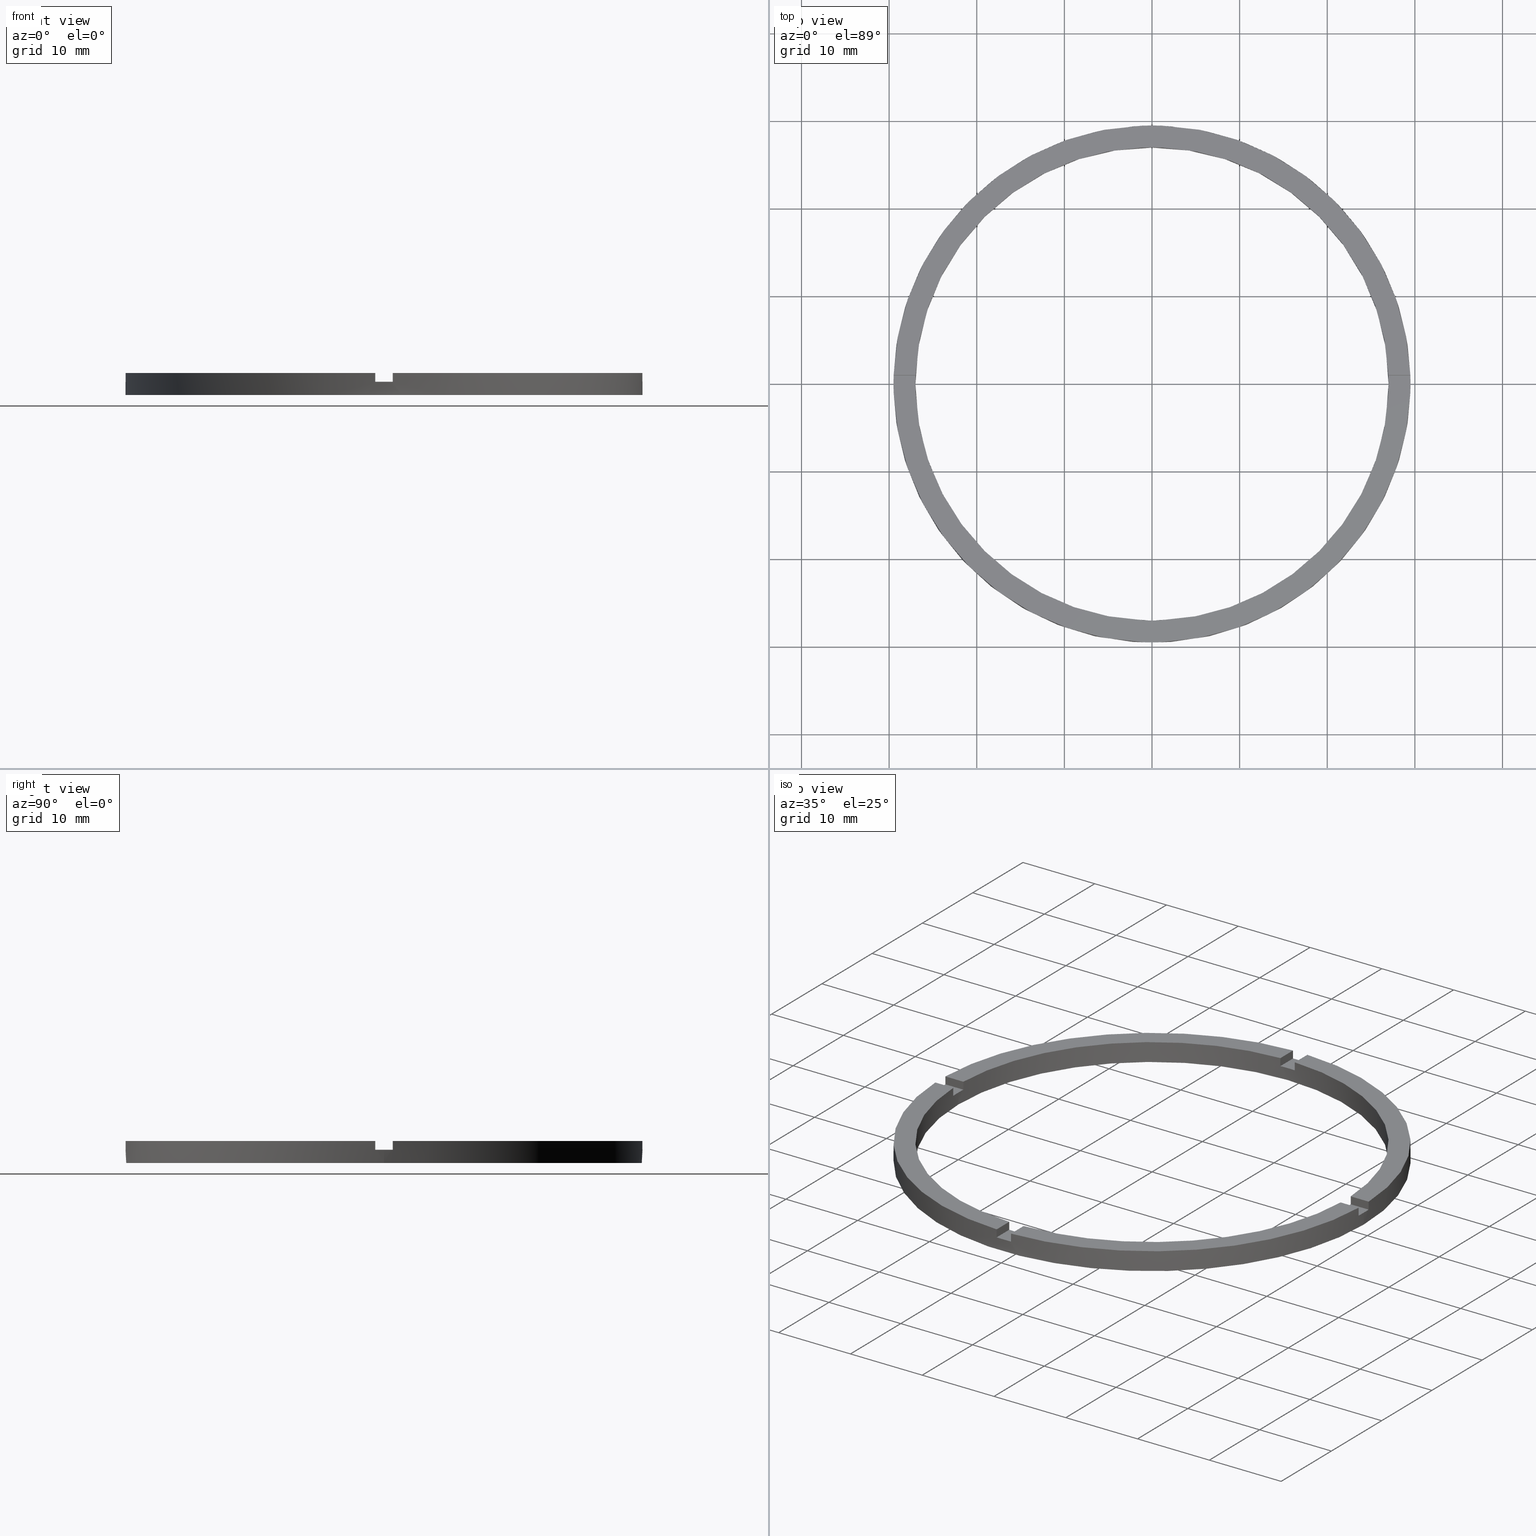
[diagram: canonical four-view strip — front | top / right | iso, engineering-drawing reading convention]
A machine part, canonical four-view strip (front | top / right | iso — engineering-drawing reading convention). The complete STEP part file that produces these views, byte-faithful:
ISO-10303-21;
HEADER;
FILE_DESCRIPTION (( 'STEP AP203' ),
    '1' );
FILE_NAME ('514123.step',
    '2024-12-26T02:39:42',
    ( 'MSI' ),
    ( '' ),
    'SwSTEP 2.0',
    'SolidWorks 2020',
    '' );
FILE_SCHEMA (( 'CONFIG_CONTROL_DESIGN' ));
ENDSEC;

DATA;
#1 = CARTESIAN_POINT ( 'NONE',  ( 0.000000000000000000, 0.000000000000000000, 1.500000000000000000 ) ) ;
#2 = CARTESIAN_POINT ( 'NONE',  ( 0.000000000000000000, 0.000000000000000000, 2.500000000000000000 ) ) ;
#3 = ADVANCED_FACE ( 'NONE', ( #767 ), #540, .T. ) ;
#4 = DIRECTION ( 'NONE',  ( 0.000000000000000000, 0.000000000000000000, 1.000000000000000000 ) ) ;
#5 = VECTOR ( 'NONE', #70, 1000.000000000000000 ) ;
#6 = CARTESIAN_POINT ( 'NONE',  ( -1.000000000000024203, 29.48304597561113738, 2.500000000000000000 ) ) ;
#7 = AXIS2_PLACEMENT_3D ( 'NONE', #720, #350, #202 ) ;
#8 = AXIS2_PLACEMENT_3D ( 'NONE', #368, #453, #523 ) ;
#9 = AXIS2_PLACEMENT_3D ( 'NONE', #222, #43, #286 ) ;
#10 = CIRCLE ( 'NONE', #714, 27.00000000000000000 ) ;
#11 = LINE ( 'NONE', #639, #291 ) ;
#12 = CIRCLE ( 'NONE', #546, 27.00000000000000000 ) ;
#13 =( GEOMETRIC_REPRESENTATION_CONTEXT ( 3 ) GLOBAL_UNCERTAINTY_ASSIGNED_CONTEXT ( ( #474 ) ) GLOBAL_UNIT_ASSIGNED_CONTEXT ( ( #577, #331, #372 ) ) REPRESENTATION_CONTEXT ( 'NONE', 'WORKASPACE' ) );
#14 = DIRECTION ( 'NONE',  ( 1.301042606982605567E-16, -1.000000000000000000, 0.000000000000000000 ) ) ;
#15 = EDGE_CURVE ( 'NONE', #727, #182, #545, .T. ) ;
#16 = CARTESIAN_POINT ( 'NONE',  ( 29.48304597561113383, -1.000000000000158984, 1.500000000000000000 ) ) ;
#17 = CIRCLE ( 'NONE', #375, 29.50000000000000355 ) ;
#18 = AXIS2_PLACEMENT_3D ( 'NONE', #67, #506, #111 ) ;
#19 = CIRCLE ( 'NONE', #134, 29.50000000000000355 ) ;
#20 = CARTESIAN_POINT ( 'NONE',  ( 26.98147512646408686, 0.9999999999998409050, 2.500000000000000000 ) ) ;
#21 = APPLICATION_PROTOCOL_DEFINITION ( 'international standard', 'config_control_design', 1994, #277 ) ;
#22 = LINE ( 'NONE', #781, #568 ) ;
#23 = AXIS2_PLACEMENT_3D ( 'NONE', #340, #393, #52 ) ;
#24 = FACE_OUTER_BOUND ( 'NONE', #763, .T. ) ;
#25 = DIRECTION ( 'NONE',  ( 1.000000000000000000, 0.000000000000000000, 0.000000000000000000 ) ) ;
#26 = CARTESIAN_POINT ( 'NONE',  ( 0.9999999999998377964, -26.98147512646408686, 1.500000000000000000 ) ) ;
#27 = CARTESIAN_POINT ( 'NONE',  ( 29.48304597561114448, 0.9999999999998411271, 2.500000000000000000 ) ) ;
#28 = FACE_OUTER_BOUND ( 'NONE', #153, .T. ) ;
#29 = ADVANCED_BREP_SHAPE_REPRESENTATION ( '514123', ( #470, #398 ), #13 ) ;
#30 = DIRECTION ( 'NONE',  ( -0.000000000000000000, -0.000000000000000000, -1.000000000000000000 ) ) ;
#31 = LINE ( 'NONE', #173, #301 ) ;
#32 = LINE ( 'NONE', #377, #570 ) ;
#33 = CARTESIAN_POINT ( 'NONE',  ( 26.98147512646408686, 0.9999999999998409050, 1.500000000000000000 ) ) ;
#34 = DIRECTION ( 'NONE',  ( -1.301042606982605567E-16, 1.000000000000000000, -0.000000000000000000 ) ) ;
#35 = DIRECTION ( 'NONE',  ( 6.505213034913027837E-17, -1.000000000000000000, 0.000000000000000000 ) ) ;
#36 = VECTOR ( 'NONE', #424, 1000.000000000000000 ) ;
#37 = FACE_OUTER_BOUND ( 'NONE', #512, .T. ) ;
#38 = DIRECTION ( 'NONE',  ( 0.000000000000000000, 0.000000000000000000, 1.000000000000000000 ) ) ;
#39 = DIRECTION ( 'NONE',  ( -0.000000000000000000, 0.000000000000000000, 1.000000000000000000 ) ) ;
#40 = LINE ( 'NONE', #6, #567 ) ;
#41 = FACE_OUTER_BOUND ( 'NONE', #199, .T. ) ;
#42 = VECTOR ( 'NONE', #604, 1000.000000000000000 ) ;
#43 = DIRECTION ( 'NONE',  ( 0.000000000000000000, 0.000000000000000000, 1.000000000000000000 ) ) ;
#44 = CARTESIAN_POINT ( 'NONE',  ( -1.000000000000024203, 19.50000000000000355, 1.500000000000000000 ) ) ;
#45 = ADVANCED_FACE ( 'NONE', ( #24 ), #406, .F. ) ;
#46 = CIRCLE ( 'NONE', #129, 29.50000000000000355 ) ;
#47 = LINE ( 'NONE', #311, #579 ) ;
#48 = CARTESIAN_POINT ( 'NONE',  ( 0.9999999999998369082, -19.50000000000018474, 1.500000000000000000 ) ) ;
#49 = CARTESIAN_POINT ( 'NONE',  ( -1.000000000000024203, 26.98147512646407975, 2.500000000000000000 ) ) ;
#50 = CARTESIAN_POINT ( 'NONE',  ( 26.98147512646407620, -1.000000000000159206, 2.500000000000000000 ) ) ;
#51 = APPROVAL ( #677, 'δָ��' ) ;
#52 = DIRECTION ( 'NONE',  ( 1.000000000000000000, 0.000000000000000000, 0.000000000000000000 ) ) ;
#53 = DIRECTION ( 'NONE',  ( 1.301042606982605567E-16, -1.000000000000000000, 0.000000000000000000 ) ) ;
#54 = EDGE_CURVE ( 'NONE', #674, #241, #19, .T. ) ;
#55 = ADVANCED_FACE ( 'NONE', ( #292 ), #564, .F. ) ;
#56 = DIRECTION ( 'NONE',  ( -1.000000000000000000, -1.951563910473908228E-16, 0.000000000000000000 ) ) ;
#57 = EDGE_CURVE ( 'NONE', #251, #721, #12, .T. ) ;
#58 = DIRECTION ( 'NONE',  ( 1.000000000000000000, 0.000000000000000000, -0.000000000000000000 ) ) ;
#59 = AXIS2_PLACEMENT_3D ( 'NONE', #588, #35, #211 ) ;
#60 = DIRECTION ( 'NONE',  ( 0.000000000000000000, 0.000000000000000000, 1.000000000000000000 ) ) ;
#61 = CARTESIAN_POINT ( 'NONE',  ( 27.00000000000000000, 3.306546357697853733E-15, 1.500000000000000000 ) ) ;
#62 = AXIS2_PLACEMENT_3D ( 'NONE', #511, #60, #184 ) ;
#63 = CARTESIAN_POINT ( 'NONE',  ( 0.000000000000000000, 0.000000000000000000, 0.000000000000000000 ) ) ;
#64 = PLANE ( 'NONE',  #335 ) ;
#65 = CC_DESIGN_SECURITY_CLASSIFICATION ( #196, ( #141 ) ) ;
#66 = DIRECTION ( 'NONE',  ( 0.000000000000000000, 0.000000000000000000, 1.000000000000000000 ) ) ;
#67 = CARTESIAN_POINT ( 'NONE',  ( 0.000000000000000000, 0.000000000000000000, 1.500000000000000000 ) ) ;
#68 = PERSON_AND_ORGANIZATION_ROLE ( 'design_owner' ) ;
#69 = EDGE_CURVE ( 'NONE', #151, #722, #31, .T. ) ;
#70 = DIRECTION ( 'NONE',  ( -0.000000000000000000, -0.000000000000000000, -1.000000000000000000 ) ) ;
#71 = APPROVAL_ROLE ( '' ) ;
#72 = DIRECTION ( 'NONE',  ( -0.000000000000000000, -0.000000000000000000, -1.000000000000000000 ) ) ;
#73 = EDGE_CURVE ( 'NONE', #679, #444, #303, .T. ) ;
#74 = AXIS2_PLACEMENT_3D ( 'NONE', #267, #342, #323 ) ;
#75 = DIRECTION ( 'NONE',  ( 1.000000000000000000, 0.000000000000000000, 0.000000000000000000 ) ) ;
#76 = DIRECTION ( 'NONE',  ( 0.000000000000000000, 0.000000000000000000, 1.000000000000000000 ) ) ;
#77 = EDGE_CURVE ( 'NONE', #738, #529, #22, .T. ) ;
#78 = DIRECTION ( 'NONE',  ( 1.951563910473908228E-16, -1.000000000000000000, 0.000000000000000000 ) ) ;
#79 = CARTESIAN_POINT ( 'NONE',  ( 26.98147512646407620, -1.000000000000159206, 1.500000000000000000 ) ) ;
#80 = AXIS2_PLACEMENT_3D ( 'NONE', #543, #164, #478 ) ;
#81 = DIRECTION ( 'NONE',  ( -1.000000000000000000, -6.505213034913027837E-17, -0.000000000000000000 ) ) ;
#82 = FACE_OUTER_BOUND ( 'NONE', #751, .T. ) ;
#83 = PRODUCT_DEFINITION_SHAPE ( 'NONE', 'NONE',  #684 ) ;
#84 = CIRCLE ( 'NONE', #298, 29.50000000000000355 ) ;
#85 = AXIS2_PLACEMENT_3D ( 'NONE', #598, #537, #638 ) ;
#86 = AXIS2_PLACEMENT_3D ( 'NONE', #615, #683, #25 ) ;
#87 = DIRECTION ( 'NONE',  ( -1.000000000000000000, 0.000000000000000000, 0.000000000000000000 ) ) ;
#88 = AXIS2_PLACEMENT_3D ( 'NONE', #630, #385, #87 ) ;
#89 = CARTESIAN_POINT ( 'NONE',  ( -1.000000000000162315, -26.98147512646407620, 1.500000000000000000 ) ) ;
#90 = AXIS2_PLACEMENT_3D ( 'NONE', #2, #417, #94 ) ;
#91 = EDGE_CURVE ( 'NONE', #251, #686, #293, .T. ) ;
#92 = VECTOR ( 'NONE', #127, 1000.000000000000000 ) ;
#93 = DIRECTION ( 'NONE',  ( -0.000000000000000000, 0.000000000000000000, 1.000000000000000000 ) ) ;
#94 = DIRECTION ( 'NONE',  ( 1.000000000000000000, 0.000000000000000000, 0.000000000000000000 ) ) ;
#95 = ADVANCED_FACE ( 'NONE', ( #41 ), #486, .F. ) ;
#96 = EDGE_CURVE ( 'NONE', #738, #444, #557, .T. ) ;
#97 = EDGE_CURVE ( 'NONE', #738, #233, #32, .T. ) ;
#98 = PERSON_AND_ORGANIZATION ( #371, #399 ) ;
#99 = AXIS2_PLACEMENT_3D ( 'NONE', #618, #690, #289 ) ;
#100 = APPROVAL_PERSON_ORGANIZATION ( #98, #318, #587 ) ;
#101 = LINE ( 'NONE', #631, #649 ) ;
#102 = FACE_OUTER_BOUND ( 'NONE', #147, .T. ) ;
#103 = CARTESIAN_POINT ( 'NONE',  ( 19.50000000000000000, -1.000000000000159650, 1.500000000000000000 ) ) ;
#104 = LINE ( 'NONE', #103, #108 ) ;
#105 = VECTOR ( 'NONE', #697, 1000.000000000000000 ) ;
#106 = LINE ( 'NONE', #27, #659 ) ;
#107 = DIRECTION ( 'NONE',  ( 1.000000000000000000, -0.000000000000000000, 0.000000000000000000 ) ) ;
#108 = VECTOR ( 'NONE', #705, 1000.000000000000000 ) ;
#109 = CARTESIAN_POINT ( 'NONE',  ( 0.9999999999999756861, 26.98147512646408330, 1.500000000000000000 ) ) ;
#110 = LINE ( 'NONE', #332, #122 ) ;
#111 = DIRECTION ( 'NONE',  ( 1.000000000000000000, 0.000000000000000000, 0.000000000000000000 ) ) ;
#112 = FACE_OUTER_BOUND ( 'NONE', #243, .T. ) ;
#113 = FACE_OUTER_BOUND ( 'NONE', #218, .T. ) ;
#114 = DIRECTION ( 'NONE',  ( -1.000000000000000000, -1.951563910473908228E-16, 0.000000000000000000 ) ) ;
#115 = VERTEX_POINT ( 'NONE', #146 ) ;
#116 = DIRECTION ( 'NONE',  ( 1.000000000000000000, 0.000000000000000000, 0.000000000000000000 ) ) ;
#117 = CARTESIAN_POINT ( 'NONE',  ( 0.000000000000000000, 0.000000000000000000, 2.500000000000000000 ) ) ;
#118 = PERSON_AND_ORGANIZATION_ROLE ( 'creator' ) ;
#119 = CARTESIAN_POINT ( 'NONE',  ( 0.9999999999999756861, 19.50000000000000355, 2.500000000000000000 ) ) ;
#120 = VECTOR ( 'NONE', #114, 1000.000000000000000 ) ;
#121 = EDGE_LOOP ( 'NONE', ( #396, #123, #473, #175 ) ) ;
#122 = VECTOR ( 'NONE', #72, 1000.000000000000000 ) ;
#123 = ORIENTED_EDGE ( 'NONE', *, *, #348, .T. ) ;
#124 = VECTOR ( 'NONE', #337, 1000.000000000000000 ) ;
#125 = CARTESIAN_POINT ( 'NONE',  ( 0.000000000000000000, 0.000000000000000000, 2.500000000000000000 ) ) ;
#126 = ORIENTED_EDGE ( 'NONE', *, *, #232, .T. ) ;
#127 = DIRECTION ( 'NONE',  ( -0.000000000000000000, -0.000000000000000000, -1.000000000000000000 ) ) ;
#128 = ORIENTED_EDGE ( 'NONE', *, *, #773, .F. ) ;
#129 = AXIS2_PLACEMENT_3D ( 'NONE', #443, #668, #116 ) ;
#130 = VERTEX_POINT ( 'NONE', #461 ) ;
#131 = CIRCLE ( 'NONE', #99, 27.00000000000000000 ) ;
#132 = ORIENTED_EDGE ( 'NONE', *, *, #533, .F. ) ;
#133 = AXIS2_PLACEMENT_3D ( 'NONE', #571, #737, #432 ) ;
#134 = AXIS2_PLACEMENT_3D ( 'NONE', #471, #38, #595 ) ;
#135 = VECTOR ( 'NONE', #531, 1000.000000000000000 ) ;
#136 = DIRECTION ( 'NONE',  ( -1.000000000000000000, 0.000000000000000000, 0.000000000000000000 ) ) ;
#137 = ORIENTED_EDGE ( 'NONE', *, *, #766, .F. ) ;
#138 = CARTESIAN_POINT ( 'NONE',  ( 0.000000000000000000, 0.000000000000000000, 1.500000000000000000 ) ) ;
#139 = CARTESIAN_POINT ( 'NONE',  ( 0.000000000000000000, 0.000000000000000000, 0.000000000000000000 ) ) ;
#140 = CARTESIAN_POINT ( 'NONE',  ( 27.00000000000000000, 3.306546357697853733E-15, 2.500000000000000000 ) ) ;
#141 = PRODUCT_DEFINITION_FORMATION_WITH_SPECIFIED_SOURCE ( '�κ�', '', #566, .NOT_KNOWN. ) ;
#142 = EDGE_CURVE ( 'NONE', #162, #130, #295, .T. ) ;
#143 = DESIGN_CONTEXT ( 'detailed design', #277, 'design' ) ;
#144 = DATE_AND_TIME ( #168, #166 ) ;
#145 = PERSON_AND_ORGANIZATION ( #371, #399 ) ;
#146 = CARTESIAN_POINT ( 'NONE',  ( -26.98147512646407975, -1.000000000000024425, 1.500000000000000000 ) ) ;
#147 = EDGE_LOOP ( 'NONE', ( #263, #505, #713, #435 ) ) ;
#148 = DIRECTION ( 'NONE',  ( 1.000000000000000000, 0.000000000000000000, 0.000000000000000000 ) ) ;
#149 = EDGE_CURVE ( 'NONE', #780, #241, #300, .T. ) ;
#150 = VERTEX_POINT ( 'NONE', #360 ) ;
#151 = VERTEX_POINT ( 'NONE', #109 ) ;
#152 = COORDINATED_UNIVERSAL_TIME_OFFSET ( 8, 0, .AHEAD. ) ;
#153 = EDGE_LOOP ( 'NONE', ( #457, #191, #667, #465, #711, #709, #652, #452, #669, #192, #648, #436 ) ) ;
#154 = COORDINATED_UNIVERSAL_TIME_OFFSET ( 8, 0, .AHEAD. ) ;
#155 = AXIS2_PLACEMENT_3D ( 'NONE', #378, #524, #581 ) ;
#156 = ADVANCED_FACE ( 'NONE', ( #290 ), #499, .T. ) ;
#157 = ORIENTED_EDGE ( 'NONE', *, *, #715, .F. ) ;
#158 = AXIS2_PLACEMENT_3D ( 'NONE', #599, #107, #325 ) ;
#159 = EDGE_LOOP ( 'NONE', ( #454, #189, #237, #746, #507, #754 ) ) ;
#160 = DATE_AND_TIME ( #676, #662 ) ;
#161 = APPROVAL_DATE_TIME ( #415, #51 ) ;
#162 = VERTEX_POINT ( 'NONE', #195 ) ;
#163 = CALENDAR_DATE ( 2024, 26, 12 ) ;
#164 = DIRECTION ( 'NONE',  ( 0.000000000000000000, 0.000000000000000000, 1.000000000000000000 ) ) ;
#165 = PLANE ( 'NONE',  #562 ) ;
#166 = LOCAL_TIME ( 10, 39, 42.00000000000000000, #419 ) ;
#167 = EDGE_LOOP ( 'NONE', ( #681, #215, #207, #782 ) ) ;
#168 = CALENDAR_DATE ( 2024, 26, 12 ) ;
#169 = ORIENTED_EDGE ( 'NONE', *, *, #91, .T. ) ;
#170 = LOCAL_TIME ( 10, 39, 42.00000000000000000, #152 ) ;
#171 = ORIENTED_EDGE ( 'NONE', *, *, #694, .T. ) ;
#172 = APPROVAL_DATE_TIME ( #685, #318 ) ;
#173 = CARTESIAN_POINT ( 'NONE',  ( 0.9999999999999756861, 26.98147512646408330, 2.500000000000000000 ) ) ;
#174 = APPROVAL_DATE_TIME ( #144, #210 ) ;
#175 = ORIENTED_EDGE ( 'NONE', *, *, #779, .F. ) ;
#176 = ADVANCED_FACE ( 'NONE', ( #547 ), #504, .T. ) ;
#177 = ORIENTED_EDGE ( 'NONE', *, *, #305, .T. ) ;
#178 = ORIENTED_EDGE ( 'NONE', *, *, #482, .F. ) ;
#179 = ORIENTED_EDGE ( 'NONE', *, *, #91, .F. ) ;
#180 = APPROVAL_PERSON_ORGANIZATION ( #145, #210, #328 ) ;
#181 = DIRECTION ( 'NONE',  ( 0.000000000000000000, 0.000000000000000000, 1.000000000000000000 ) ) ;
#182 = VERTEX_POINT ( 'NONE', #61 ) ;
#183 = VERTEX_POINT ( 'NONE', #274 ) ;
#184 = DIRECTION ( 'NONE',  ( 1.000000000000000000, 0.000000000000000000, -0.000000000000000000 ) ) ;
#185 = ORIENTED_EDGE ( 'NONE', *, *, #609, .F. ) ;
#186 = VERTEX_POINT ( 'NONE', #268 ) ;
#187 = EDGE_LOOP ( 'NONE', ( #225, #660, #128, #699 ) ) ;
#188 = ORIENTED_EDGE ( 'NONE', *, *, #308, .T. ) ;
#189 = ORIENTED_EDGE ( 'NONE', *, *, #634, .T. ) ;
#190 = VERTEX_POINT ( 'NONE', #324 ) ;
#191 = ORIENTED_EDGE ( 'NONE', *, *, #611, .T. ) ;
#192 = ORIENTED_EDGE ( 'NONE', *, *, #665, .T. ) ;
#193 = VERTEX_POINT ( 'NONE', #16 ) ;
#194 = CARTESIAN_POINT ( 'NONE',  ( -29.48304597561114093, 0.9999999999999749090, 2.500000000000000000 ) ) ;
#195 = CARTESIAN_POINT ( 'NONE',  ( -29.50000000000000355, 0.000000000000000000, 0.000000000000000000 ) ) ;
#196 = SECURITY_CLASSIFICATION ( '', '', #288 ) ;
#197 = ORIENTED_EDGE ( 'NONE', *, *, #77, .F. ) ;
#198 = CARTESIAN_POINT ( 'NONE',  ( -1.000000000000024203, 19.50000000000000355, 2.500000000000000000 ) ) ;
#199 = EDGE_LOOP ( 'NONE', ( #391, #272, #650, #771 ) ) ;
#200 = ORIENTED_EDGE ( 'NONE', *, *, #644, .F. ) ;
#201 = EDGE_LOOP ( 'NONE', ( #756, #250, #508, #200, #666, #655, #411, #197, #703, #178, #188, #695 ) ) ;
#202 = DIRECTION ( 'NONE',  ( 1.000000000000000000, 0.000000000000000000, -0.000000000000000000 ) ) ;
#203 = EDGE_CURVE ( 'NONE', #752, #421, #17, .T. ) ;
#204 = ORIENTED_EDGE ( 'NONE', *, *, #285, .T. ) ;
#205 = DIRECTION ( 'NONE',  ( 0.000000000000000000, 0.000000000000000000, 1.000000000000000000 ) ) ;
#206 = VERTEX_POINT ( 'NONE', #561 ) ;
#207 = ORIENTED_EDGE ( 'NONE', *, *, #715, .T. ) ;
#208 = CARTESIAN_POINT ( 'NONE',  ( -19.50000000000018829, 0.9999999999999767963, 2.500000000000000000 ) ) ;
#209 = CARTESIAN_POINT ( 'NONE',  ( -26.98147512646408330, 0.9999999999999754641, 1.500000000000000000 ) ) ;
#210 = APPROVAL ( #463, 'δָ��' ) ;
#211 = DIRECTION ( 'NONE',  ( 1.000000000000000000, 6.505213034913027837E-17, 0.000000000000000000 ) ) ;
#212 = EDGE_LOOP ( 'NONE', ( #220, #213, #261, #235, #466, #732, #258, #137, #778, #132, #426, #221 ) ) ;
#213 = ORIENTED_EDGE ( 'NONE', *, *, #733, .F. ) ;
#214 = CARTESIAN_POINT ( 'NONE',  ( 0.9999999999999756861, 19.50000000000000355, 1.500000000000000000 ) ) ;
#215 = ORIENTED_EDGE ( 'NONE', *, *, #69, .T. ) ;
#216 = ORIENTED_EDGE ( 'NONE', *, *, #96, .F. ) ;
#217 = ORIENTED_EDGE ( 'NONE', *, *, #348, .F. ) ;
#218 = EDGE_LOOP ( 'NONE', ( #459, #498, #764, #700 ) ) ;
#219 = DIRECTION ( 'NONE',  ( 0.000000000000000000, 1.000000000000000000, 0.000000000000000000 ) ) ;
#220 = ORIENTED_EDGE ( 'NONE', *, *, #611, .F. ) ;
#221 = ORIENTED_EDGE ( 'NONE', *, *, #142, .T. ) ;
#222 = CARTESIAN_POINT ( 'NONE',  ( 0.000000000000000000, 0.000000000000000000, 1.500000000000000000 ) ) ;
#223 = PERSON_AND_ORGANIZATION_ROLE ( 'design_supplier' ) ;
#224 = CARTESIAN_POINT ( 'NONE',  ( -29.48304597561113738, -1.000000000000025091, 1.500000000000000000 ) ) ;
#225 = ORIENTED_EDGE ( 'NONE', *, *, #149, .F. ) ;
#226 = ORIENTED_EDGE ( 'NONE', *, *, #644, .T. ) ;
#227 = DIRECTION ( 'NONE',  ( 1.000000000000000000, 0.000000000000000000, 0.000000000000000000 ) ) ;
#228 = VECTOR ( 'NONE', #610, 1000.000000000000000 ) ;
#229 = CIRCLE ( 'NONE', #640, 27.00000000000000000 ) ;
#230 = CARTESIAN_POINT ( 'NONE',  ( 0.000000000000000000, 0.000000000000000000, 1.500000000000000000 ) ) ;
#231 = CARTESIAN_POINT ( 'NONE',  ( 29.50000000000000355, 3.612708057484692393E-15, 1.500000000000000000 ) ) ;
#232 = EDGE_CURVE ( 'NONE', #150, #395, #550, .T. ) ;
#233 = VERTEX_POINT ( 'NONE', #654 ) ;
#234 = ADVANCED_FACE ( 'NONE', ( #317 ), #565, .T. ) ;
#235 = ORIENTED_EDGE ( 'NONE', *, *, #54, .F. ) ;
#236 = DIRECTION ( 'NONE',  ( 0.000000000000000000, 0.000000000000000000, 1.000000000000000000 ) ) ;
#237 = ORIENTED_EDGE ( 'NONE', *, *, #458, .T. ) ;
#238 = DIRECTION ( 'NONE',  ( -1.000000000000000000, -1.301042606982605567E-16, 0.000000000000000000 ) ) ;
#239 = CC_DESIGN_PERSON_AND_ORGANIZATION_ASSIGNMENT ( #401, #68, ( #566 ) ) ;
#240 = EDGE_CURVE ( 'NONE', #206, #501, #312, .T. ) ;
#241 = VERTEX_POINT ( 'NONE', #730 ) ;
#242 = ORIENTED_EDGE ( 'NONE', *, *, #484, .F. ) ;
#243 = EDGE_LOOP ( 'NONE', ( #510, #440, #245, #242 ) ) ;
#244 = ADVANCED_FACE ( 'NONE', ( #314, #573 ), #608, .F. ) ;
#245 = ORIENTED_EDGE ( 'NONE', *, *, #149, .T. ) ;
#246 = CARTESIAN_POINT ( 'NONE',  ( 29.48304597561114448, 0.9999999999998411271, 2.500000000000000000 ) ) ;
#247 = ORIENTED_EDGE ( 'NONE', *, *, #687, .F. ) ;
#248 = DIRECTION ( 'NONE',  ( -6.505213034913027837E-17, 1.000000000000000000, 0.000000000000000000 ) ) ;
#249 = EDGE_CURVE ( 'NONE', #183, #150, #46, .T. ) ;
#250 = ORIENTED_EDGE ( 'NONE', *, *, #687, .T. ) ;
#251 = VERTEX_POINT ( 'NONE', #209 ) ;
#252 = LINE ( 'NONE', #688, #772 ) ;
#253 = ORIENTED_EDGE ( 'NONE', *, *, #766, .T. ) ;
#254 = LINE ( 'NONE', #280, #765 ) ;
#255 = VERTEX_POINT ( 'NONE', #515 ) ;
#256 = CARTESIAN_POINT ( 'NONE',  ( -1.000000000000161871, -29.48304597561113383, 2.500000000000000000 ) ) ;
#257 = CARTESIAN_POINT ( 'NONE',  ( 29.48304597561114448, 0.9999999999998411271, 1.500000000000000000 ) ) ;
#258 = ORIENTED_EDGE ( 'NONE', *, *, #489, .T. ) ;
#259 = VERTEX_POINT ( 'NONE', #257 ) ;
#260 = CIRCLE ( 'NONE', #603, 29.50000000000000355 ) ;
#261 = ORIENTED_EDGE ( 'NONE', *, *, #484, .T. ) ;
#262 = CARTESIAN_POINT ( 'NONE',  ( 0.9999999999998382405, -29.48304597561114448, 2.500000000000000000 ) ) ;
#263 = ORIENTED_EDGE ( 'NONE', *, *, #597, .T. ) ;
#264 = CARTESIAN_POINT ( 'NONE',  ( 0.000000000000000000, 0.000000000000000000, 2.500000000000000000 ) ) ;
#265 = ORIENTED_EDGE ( 'NONE', *, *, #354, .T. ) ;
#266 = DIRECTION ( 'NONE',  ( 0.000000000000000000, 0.000000000000000000, 1.000000000000000000 ) ) ;
#267 = CARTESIAN_POINT ( 'NONE',  ( 0.000000000000000000, 0.000000000000000000, 1.500000000000000000 ) ) ;
#268 = CARTESIAN_POINT ( 'NONE',  ( 27.00000000000000000, 3.306546357697853733E-15, 0.000000000000000000 ) ) ;
#269 = PLANE ( 'NONE',  #477 ) ;
#270 = CARTESIAN_POINT ( 'NONE',  ( 29.50000000000000355, 3.612708057484692393E-15, 2.500000000000000000 ) ) ;
#271 = DIRECTION ( 'NONE',  ( 0.000000000000000000, 0.000000000000000000, 1.000000000000000000 ) ) ;
#272 = ORIENTED_EDGE ( 'NONE', *, *, #482, .T. ) ;
#273 = CARTESIAN_POINT ( 'NONE',  ( 0.000000000000000000, 0.000000000000000000, 1.500000000000000000 ) ) ;
#274 = CARTESIAN_POINT ( 'NONE',  ( 0.9999999999999756861, 29.48304597561114093, 1.500000000000000000 ) ) ;
#275 = EDGE_CURVE ( 'NONE', #710, #395, #47, .T. ) ;
#276 = CARTESIAN_POINT ( 'NONE',  ( -1.000000000000024203, 26.98147512646407975, 1.500000000000000000 ) ) ;
#277 = APPLICATION_CONTEXT ( 'configuration controlled 3d designs of mechanical parts and assemblies' ) ;
#278 = CARTESIAN_POINT ( 'NONE',  ( 0.000000000000000000, 0.000000000000000000, 2.500000000000000000 ) ) ;
#279 = CC_DESIGN_APPROVAL ( #318, ( #684 ) ) ;
#280 = CARTESIAN_POINT ( 'NONE',  ( 0.9999999999998377964, -26.98147512646408686, 2.500000000000000000 ) ) ;
#281 = CARTESIAN_POINT ( 'NONE',  ( -19.50000000000018829, -1.000000000000023315, 1.500000000000000000 ) ) ;
#282 = DIRECTION ( 'NONE',  ( 1.000000000000000000, 0.000000000000000000, 0.000000000000000000 ) ) ;
#283 = VECTOR ( 'NONE', #181, 1000.000000000000000 ) ;
#284 = DIRECTION ( 'NONE',  ( -1.000000000000000000, 0.000000000000000000, 0.000000000000000000 ) ) ;
#285 = EDGE_CURVE ( 'NONE', #151, #183, #320, .T. ) ;
#286 = DIRECTION ( 'NONE',  ( 1.000000000000000000, 0.000000000000000000, 0.000000000000000000 ) ) ;
#287 = DIRECTION ( 'NONE',  ( 0.000000000000000000, 0.000000000000000000, 1.000000000000000000 ) ) ;
#288 = SECURITY_CLASSIFICATION_LEVEL ( 'unclassified' ) ;
#289 = DIRECTION ( 'NONE',  ( 1.000000000000000000, 0.000000000000000000, 0.000000000000000000 ) ) ;
#290 = FACE_OUTER_BOUND ( 'NONE', #646, .T. ) ;
#291 = VECTOR ( 'NONE', #725, 1000.000000000000000 ) ;
#292 = FACE_OUTER_BOUND ( 'NONE', #201, .T. ) ;
#293 = LINE ( 'NONE', #623, #552 ) ;
#294 = DIRECTION ( 'NONE',  ( 1.000000000000000000, 0.000000000000000000, 0.000000000000000000 ) ) ;
#295 = CIRCLE ( 'NONE', #584, 29.50000000000000355 ) ;
#296 = CARTESIAN_POINT ( 'NONE',  ( 19.50000000000000000, -1.000000000000159650, 2.500000000000000000 ) ) ;
#297 = AXIS2_PLACEMENT_3D ( 'NONE', #1, #93, #530 ) ;
#298 = AXIS2_PLACEMENT_3D ( 'NONE', #273, #563, #496 ) ;
#299 = LINE ( 'NONE', #319, #283 ) ;
#300 = LINE ( 'NONE', #296, #42 ) ;
#301 = VECTOR ( 'NONE', #467, 1000.000000000000000 ) ;
#302 = CARTESIAN_POINT ( 'NONE',  ( -1.000000000000024203, 29.48304597561113738, 2.500000000000000000 ) ) ;
#303 = LINE ( 'NONE', #48, #554 ) ;
#304 = AXIS2_PLACEMENT_3D ( 'NONE', #560, #248, #503 ) ;
#305 = EDGE_CURVE ( 'NONE', #710, #686, #10, .T. ) ;
#306 = CIRCLE ( 'NONE', #357, 27.00000000000000000 ) ;
#307 = VECTOR ( 'NONE', #748, 1000.000000000000000 ) ;
#308 = EDGE_CURVE ( 'NONE', #413, #780, #553, .T. ) ;
#309 = CARTESIAN_POINT ( 'NONE',  ( 19.50000000000000000, 0.9999999999998404610, 2.500000000000000000 ) ) ;
#310 = VECTOR ( 'NONE', #219, 1000.000000000000000 ) ;
#311 = CARTESIAN_POINT ( 'NONE',  ( -1.000000000000024203, 26.98147512646407975, 2.500000000000000000 ) ) ;
#312 = LINE ( 'NONE', #663, #575 ) ;
#313 = ADVANCED_FACE ( 'NONE', ( #28 ), #535, .T. ) ;
#314 = FACE_OUTER_BOUND ( 'NONE', #653, .T. ) ;
#315 = CARTESIAN_POINT ( 'NONE',  ( 0.000000000000000000, 0.000000000000000000, 0.000000000000000000 ) ) ;
#316 = EDGE_CURVE ( 'NONE', #704, #722, #520, .T. ) ;
#317 = FACE_OUTER_BOUND ( 'NONE', #450, .T. ) ;
#318 = APPROVAL ( #744, 'δָ��' ) ;
#319 = CARTESIAN_POINT ( 'NONE',  ( -1.000000000000161871, -29.48304597561113383, 2.500000000000000000 ) ) ;
#320 = LINE ( 'NONE', #214, #310 ) ;
#321 = DIRECTION ( 'NONE',  ( -0.000000000000000000, -0.000000000000000000, -1.000000000000000000 ) ) ;
#322 = EDGE_CURVE ( 'NONE', #460, #716, #539, .T. ) ;
#323 = DIRECTION ( 'NONE',  ( 1.000000000000000000, 0.000000000000000000, 0.000000000000000000 ) ) ;
#324 = CARTESIAN_POINT ( 'NONE',  ( -26.98147512646407975, -1.000000000000024425, 2.500000000000000000 ) ) ;
#325 = DIRECTION ( 'NONE',  ( 0.000000000000000000, 0.000000000000000000, -1.000000000000000000 ) ) ;
#326 = DIRECTION ( 'NONE',  ( 1.000000000000000000, 0.000000000000000000, 0.000000000000000000 ) ) ;
#327 = CARTESIAN_POINT ( 'NONE',  ( 0.000000000000000000, 0.000000000000000000, 1.500000000000000000 ) ) ;
#328 = APPROVAL_ROLE ( '' ) ;
#329 = DIRECTION ( 'NONE',  ( 0.000000000000000000, 0.000000000000000000, 1.000000000000000000 ) ) ;
#330 = DIRECTION ( 'NONE',  ( -0.000000000000000000, -0.000000000000000000, -1.000000000000000000 ) ) ;
#331 =( NAMED_UNIT ( * ) PLANE_ANGLE_UNIT ( ) SI_UNIT ( $, .RADIAN. ) );
#332 = CARTESIAN_POINT ( 'NONE',  ( -27.00000000000000000, 0.000000000000000000, 2.500000000000000000 ) ) ;
#333 = AXIS2_PLACEMENT_3D ( 'NONE', #281, #78, #582 ) ;
#334 = DIRECTION ( 'NONE',  ( 0.000000000000000000, 0.000000000000000000, 1.000000000000000000 ) ) ;
#335 = AXIS2_PLACEMENT_3D ( 'NONE', #651, #205, #361 ) ;
#336 = ADVANCED_FACE ( 'NONE', ( #542 ), #513, .T. ) ;
#337 = DIRECTION ( 'NONE',  ( 1.000000000000000000, 1.951563910473908228E-16, -0.000000000000000000 ) ) ;
#338 = EDGE_CURVE ( 'NONE', #762, #501, #260, .T. ) ;
#339 = AXIS2_PLACEMENT_3D ( 'NONE', #770, #39, #148 ) ;
#340 = CARTESIAN_POINT ( 'NONE',  ( 0.000000000000000000, 0.000000000000000000, 1.500000000000000000 ) ) ;
#341 = ADVANCED_FACE ( 'NONE', ( #616 ), #269, .T. ) ;
#342 = DIRECTION ( 'NONE',  ( 0.000000000000000000, 0.000000000000000000, 1.000000000000000000 ) ) ;
#343 = CARTESIAN_POINT ( 'NONE',  ( 0.000000000000000000, 0.000000000000000000, 2.500000000000000000 ) ) ;
#344 = DIRECTION ( 'NONE',  ( 1.000000000000000000, 0.000000000000000000, 0.000000000000000000 ) ) ;
#345 = ADVANCED_FACE ( 'NONE', ( #82 ), #620, .F. ) ;
#346 = CARTESIAN_POINT ( 'NONE',  ( 0.000000000000000000, 0.000000000000000000, 1.500000000000000000 ) ) ;
#347 = DIRECTION ( 'NONE',  ( 0.000000000000000000, 0.000000000000000000, 1.000000000000000000 ) ) ;
#348 = EDGE_CURVE ( 'NONE', #704, #479, #359, .T. ) ;
#349 = PLANE ( 'NONE',  #304 ) ;
#350 = DIRECTION ( 'NONE',  ( 0.000000000000000000, -0.000000000000000000, 1.000000000000000000 ) ) ;
#351 = CARTESIAN_POINT ( 'NONE',  ( 19.50000000000000000, 0.9999999999998404610, 1.500000000000000000 ) ) ;
#352 = CC_DESIGN_PERSON_AND_ORGANIZATION_ASSIGNMENT ( #680, #118, ( #684 ) ) ;
#353 = CARTESIAN_POINT ( 'NONE',  ( -1.000000000000162315, -26.98147512646407620, 2.500000000000000000 ) ) ;
#354 = EDGE_CURVE ( 'NONE', #233, #679, #84, .T. ) ;
#355 = CIRCLE ( 'NONE', #18, 29.50000000000000355 ) ;
#356 = EDGE_CURVE ( 'NONE', #206, #490, #355, .T. ) ;
#357 = AXIS2_PLACEMENT_3D ( 'NONE', #138, #287, #758 ) ;
#358 = DIRECTION ( 'NONE',  ( -0.000000000000000000, -0.000000000000000000, -1.000000000000000000 ) ) ;
#359 = LINE ( 'NONE', #20, #92 ) ;
#360 = CARTESIAN_POINT ( 'NONE',  ( -1.000000000000024203, 29.48304597561113738, 1.500000000000000000 ) ) ;
#361 = DIRECTION ( 'NONE',  ( 1.000000000000000000, 0.000000000000000000, -0.000000000000000000 ) ) ;
#362 = EDGE_CURVE ( 'NONE', #762, #710, #740, .T. ) ;
#363 = CC_DESIGN_PERSON_AND_ORGANIZATION_ASSIGNMENT ( #433, #223, ( #141 ) ) ;
#364 = DIRECTION ( 'NONE',  ( 0.000000000000000000, -0.000000000000000000, 1.000000000000000000 ) ) ;
#365 = CARTESIAN_POINT ( 'NONE',  ( 0.9999999999998369082, -19.50000000000018474, 2.500000000000000000 ) ) ;
#366 = CARTESIAN_POINT ( 'NONE',  ( -19.50000000000018829, -1.000000000000023315, 1.500000000000000000 ) ) ;
#367 = LINE ( 'NONE', #607, #657 ) ;
#368 = CARTESIAN_POINT ( 'NONE',  ( 0.000000000000000000, 0.000000000000000000, 2.500000000000000000 ) ) ;
#369 = VECTOR ( 'NONE', #358, 1000.000000000000000 ) ;
#370 = DIRECTION ( 'NONE',  ( 0.000000000000000000, 0.000000000000000000, 1.000000000000000000 ) ) ;
#371 = PERSON ( 'δָ��', 'δָ��', 'δָ��', ('δָ��'), ('δָ��'), ('δָ��') ) ;
#372 =( NAMED_UNIT ( * ) SI_UNIT ( $, .STERADIAN. ) SOLID_ANGLE_UNIT ( ) );
#373 = FACE_OUTER_BOUND ( 'NONE', #167, .T. ) ;
#374 = VECTOR ( 'NONE', #425, 1000.000000000000000 ) ;
#375 = AXIS2_PLACEMENT_3D ( 'NONE', #264, #4, #326 ) ;
#376 = CIRCLE ( 'NONE', #23, 29.50000000000000355 ) ;
#377 = CARTESIAN_POINT ( 'NONE',  ( -1.000000000000162981, -19.50000000000018474, 1.500000000000000000 ) ) ;
#378 = CARTESIAN_POINT ( 'NONE',  ( 0.000000000000000000, 0.000000000000000000, 2.500000000000000000 ) ) ;
#379 = PERSON_AND_ORGANIZATION_ROLE ( 'classification_officer' ) ;
#380 = FACE_OUTER_BOUND ( 'NONE', #121, .T. ) ;
#381 = EDGE_CURVE ( 'NONE', #255, #186, #229, .T. ) ;
#382 = ADVANCED_FACE ( 'NONE', ( #488 ), #64, .T. ) ;
#383 = LINE ( 'NONE', #50, #637 ) ;
#384 = LINE ( 'NONE', #140, #105 ) ;
#385 = DIRECTION ( 'NONE',  ( -0.000000000000000000, -0.000000000000000000, -1.000000000000000000 ) ) ;
#386 = CARTESIAN_POINT ( 'NONE',  ( 0.9999999999999756861, 29.48304597561114093, 2.500000000000000000 ) ) ;
#387 = CIRCLE ( 'NONE', #612, 29.50000000000000355 ) ;
#388 = CIRCLE ( 'NONE', #632, 27.00000000000000000 ) ;
#389 = EDGE_CURVE ( 'NONE', #190, #115, #736, .T. ) ;
#390 = LINE ( 'NONE', #386, #135 ) ;
#391 = ORIENTED_EDGE ( 'NONE', *, *, #773, .T. ) ;
#392 = DIRECTION ( 'NONE',  ( 0.000000000000000000, 0.000000000000000000, 1.000000000000000000 ) ) ;
#393 = DIRECTION ( 'NONE',  ( 0.000000000000000000, 0.000000000000000000, 1.000000000000000000 ) ) ;
#394 = LINE ( 'NONE', #366, #124 ) ;
#395 = VERTEX_POINT ( 'NONE', #276 ) ;
#396 = ORIENTED_EDGE ( 'NONE', *, *, #536, .T. ) ;
#397 = CIRCLE ( 'NONE', #451, 29.50000000000000355 ) ;
#398 = AXIS2_PLACEMENT_3D ( 'NONE', #139, #456, #696 ) ;
#399 = ORGANIZATION ( 'δָ��', 'δָ��', '' ) ;
#400 = ORIENTED_EDGE ( 'NONE', *, *, #469, .T. ) ;
#401 = PERSON_AND_ORGANIZATION ( #371, #399 ) ;
#402 = ORIENTED_EDGE ( 'NONE', *, *, #57, .F. ) ;
#403 = FACE_OUTER_BOUND ( 'NONE', #418, .T. ) ;
#404 = ORIENTED_EDGE ( 'NONE', *, *, #362, .F. ) ;
#405 = EDGE_CURVE ( 'NONE', #151, #395, #741, .T. ) ;
#406 = PLANE ( 'NONE',  #429 ) ;
#407 = DIRECTION ( 'NONE',  ( 0.000000000000000000, 0.000000000000000000, 1.000000000000000000 ) ) ;
#408 = EDGE_LOOP ( 'NONE', ( #517, #509, #171, #476, #402, #445 ) ) ;
#409 = CALENDAR_DATE ( 2024, 26, 12 ) ;
#410 = COORDINATED_UNIVERSAL_TIME_OFFSET ( 8, 0, .AHEAD. ) ;
#411 = ORIENTED_EDGE ( 'NONE', *, *, #549, .T. ) ;
#412 = PERSON_AND_ORGANIZATION ( #371, #399 ) ;
#413 = VERTEX_POINT ( 'NONE', #613 ) ;
#414 = DIRECTION ( 'NONE',  ( 1.000000000000000000, 0.000000000000000000, -0.000000000000000000 ) ) ;
#415 = DATE_AND_TIME ( #163, #682 ) ;
#416 = PERSON_AND_ORGANIZATION ( #371, #399 ) ;
#417 = DIRECTION ( 'NONE',  ( 0.000000000000000000, 0.000000000000000000, 1.000000000000000000 ) ) ;
#418 = EDGE_LOOP ( 'NONE', ( #265, #693, #216, #437 ) ) ;
#419 = COORDINATED_UNIVERSAL_TIME_OFFSET ( 8, 0, .AHEAD. ) ;
#420 = DIRECTION ( 'NONE',  ( 0.000000000000000000, 0.000000000000000000, 1.000000000000000000 ) ) ;
#421 = VERTEX_POINT ( 'NONE', #602 ) ;
#422 = APPROVAL_PERSON_ORGANIZATION ( #427, #51, #71 ) ;
#423 = ORIENTED_EDGE ( 'NONE', *, *, #249, .T. ) ;
#424 = DIRECTION ( 'NONE',  ( -1.000000000000000000, -6.505213034913027837E-17, -0.000000000000000000 ) ) ;
#425 = DIRECTION ( 'NONE',  ( -0.000000000000000000, -0.000000000000000000, -1.000000000000000000 ) ) ;
#426 = ORIENTED_EDGE ( 'NONE', *, *, #441, .T. ) ;
#427 = PERSON_AND_ORGANIZATION ( #371, #399 ) ;
#428 = DIRECTION ( 'NONE',  ( -0.000000000000000000, -1.000000000000000000, -0.000000000000000000 ) ) ;
#429 = AXIS2_PLACEMENT_3D ( 'NONE', #768, #777, #56 ) ;
#430 = ORIENTED_EDGE ( 'NONE', *, *, #142, .F. ) ;
#431 = DATE_AND_TIME ( #409, #170 ) ;
#432 = DIRECTION ( 'NONE',  ( -1.000000000000000000, 0.000000000000000000, 0.000000000000000000 ) ) ;
#433 = PERSON_AND_ORGANIZATION ( #371, #399 ) ;
#434 = AXIS2_PLACEMENT_3D ( 'NONE', #739, #66, #661 ) ;
#435 = ORIENTED_EDGE ( 'NONE', *, *, #322, .F. ) ;
#436 = ORIENTED_EDGE ( 'NONE', *, *, #779, .T. ) ;
#437 = ORIENTED_EDGE ( 'NONE', *, *, #97, .T. ) ;
#438 = CARTESIAN_POINT ( 'NONE',  ( -26.98147512646407975, -1.000000000000024425, 2.500000000000000000 ) ) ;
#439 = LOCAL_TIME ( 10, 39, 42.00000000000000000, #154 ) ;
#440 = ORIENTED_EDGE ( 'NONE', *, *, #594, .T. ) ;
#441 = EDGE_CURVE ( 'NONE', #490, #162, #492, .T. ) ;
#442 = ORIENTED_EDGE ( 'NONE', *, *, #203, .T. ) ;
#443 = CARTESIAN_POINT ( 'NONE',  ( 0.000000000000000000, 0.000000000000000000, 1.500000000000000000 ) ) ;
#444 = VERTEX_POINT ( 'NONE', #26 ) ;
#445 = ORIENTED_EDGE ( 'NONE', *, *, #528, .T. ) ;
#446 = ORIENTED_EDGE ( 'NONE', *, *, #723, .F. ) ;
#447 = DIRECTION ( 'NONE',  ( 1.000000000000000000, 0.000000000000000000, 0.000000000000000000 ) ) ;
#448 = PERSON_AND_ORGANIZATION_ROLE ( 'creator' ) ;
#449 = EDGE_CURVE ( 'NONE', #762, #150, #40, .T. ) ;
#450 = EDGE_LOOP ( 'NONE', ( #404, #671, #701, #455 ) ) ;
#451 = AXIS2_PLACEMENT_3D ( 'NONE', #734, #622, #282 ) ;
#452 = ORIENTED_EDGE ( 'NONE', *, *, #449, .T. ) ;
#453 = DIRECTION ( 'NONE',  ( 0.000000000000000000, 0.000000000000000000, 1.000000000000000000 ) ) ;
#454 = ORIENTED_EDGE ( 'NONE', *, *, #733, .T. ) ;
#455 = ORIENTED_EDGE ( 'NONE', *, *, #305, .F. ) ;
#456 = DIRECTION ( 'NONE',  ( 0.000000000000000000, 0.000000000000000000, 1.000000000000000000 ) ) ;
#457 = ORIENTED_EDGE ( 'NONE', *, *, #634, .F. ) ;
#458 = EDGE_CURVE ( 'NONE', #259, #479, #569, .T. ) ;
#459 = ORIENTED_EDGE ( 'NONE', *, *, #362, .T. ) ;
#460 = VERTEX_POINT ( 'NONE', #500 ) ;
#461 = CARTESIAN_POINT ( 'NONE',  ( 29.50000000000000355, 3.612708057484692393E-15, 0.000000000000000000 ) ) ;
#462 = PLANE ( 'NONE',  #155 ) ;
#463 = APPROVAL_STATUS ( 'not_yet_approved' ) ;
#464 = CARTESIAN_POINT ( 'NONE',  ( 0.9999999999998382405, -29.48304597561114448, 2.500000000000000000 ) ) ;
#465 = ORIENTED_EDGE ( 'NONE', *, *, #441, .F. ) ;
#466 = ORIENTED_EDGE ( 'NONE', *, *, #592, .T. ) ;
#467 = DIRECTION ( 'NONE',  ( 0.000000000000000000, 0.000000000000000000, 1.000000000000000000 ) ) ;
#468 = CARTESIAN_POINT ( 'NONE',  ( -27.00000000000000000, 0.000000000000000000, 1.500000000000000000 ) ) ;
#469 = EDGE_CURVE ( 'NONE', #182, #479, #306, .T. ) ;
#470 = MANIFOLD_SOLID_BREP ( '�г�-����1', #718 ) ;
#471 = CARTESIAN_POINT ( 'NONE',  ( 0.000000000000000000, 0.000000000000000000, 2.500000000000000000 ) ) ;
#472 = ORIENTED_EDGE ( 'NONE', *, *, #489, .F. ) ;
#473 = ORIENTED_EDGE ( 'NONE', *, *, #458, .F. ) ;
#474 = UNCERTAINTY_MEASURE_WITH_UNIT (LENGTH_MEASURE( 1.000000000000000082E-05 ), #577, 'distance_accuracy_value', 'NONE');
#475 = AXIS2_PLACEMENT_3D ( 'NONE', #63, #271, #494 ) ;
#476 = ORIENTED_EDGE ( 'NONE', *, *, #558, .F. ) ;
#477 = AXIS2_PLACEMENT_3D ( 'NONE', #743, #266, #414 ) ;
#478 = DIRECTION ( 'NONE',  ( 1.000000000000000000, 0.000000000000000000, -0.000000000000000000 ) ) ;
#479 = VERTEX_POINT ( 'NONE', #33 ) ;
#480 = DIRECTION ( 'NONE',  ( 0.000000000000000000, 0.000000000000000000, 1.000000000000000000 ) ) ;
#481 = ADVANCED_FACE ( 'NONE', ( #37 ), #462, .T. ) ;
#482 = EDGE_CURVE ( 'NONE', #413, #444, #254, .T. ) ;
#483 = ORIENTED_EDGE ( 'NONE', *, *, #240, .F. ) ;
#484 = EDGE_CURVE ( 'NONE', #193, #241, #252, .T. ) ;
#485 = ORIENTED_EDGE ( 'NONE', *, *, #57, .T. ) ;
#486 = PLANE ( 'NONE',  #85 ) ;
#487 = DIRECTION ( 'NONE',  ( 1.000000000000000000, 0.000000000000000000, 0.000000000000000000 ) ) ;
#488 = FACE_OUTER_BOUND ( 'NONE', #757, .T. ) ;
#489 = EDGE_CURVE ( 'NONE', #233, #532, #299, .T. ) ;
#490 = VERTEX_POINT ( 'NONE', #544 ) ;
#491 = AXIS2_PLACEMENT_3D ( 'NONE', #327, #364, #576 ) ;
#492 = LINE ( 'NONE', #675, #307 ) ;
#493 = ORIENTED_EDGE ( 'NONE', *, *, #405, .F. ) ;
#494 = DIRECTION ( 'NONE',  ( 1.000000000000000000, 0.000000000000000000, -0.000000000000000000 ) ) ;
#495 = AXIS2_PLACEMENT_3D ( 'NONE', #44, #760, #76 ) ;
#496 = DIRECTION ( 'NONE',  ( 1.000000000000000000, 0.000000000000000000, 0.000000000000000000 ) ) ;
#497 = ORIENTED_EDGE ( 'NONE', *, *, #627, .T. ) ;
#498 = ORIENTED_EDGE ( 'NONE', *, *, #275, .T. ) ;
#499 = PLANE ( 'NONE',  #7 ) ;
#500 = CARTESIAN_POINT ( 'NONE',  ( -29.48304597561113738, -1.000000000000025091, 2.500000000000000000 ) ) ;
#501 = VERTEX_POINT ( 'NONE', #194 ) ;
#502 = ORIENTED_EDGE ( 'NONE', *, *, #549, .F. ) ;
#503 = DIRECTION ( 'NONE',  ( -1.000000000000000000, -6.505213034913027837E-17, 0.000000000000000000 ) ) ;
#504 = PLANE ( 'NONE',  #755 ) ;
#505 = ORIENTED_EDGE ( 'NONE', *, *, #389, .T. ) ;
#506 = DIRECTION ( 'NONE',  ( 0.000000000000000000, 0.000000000000000000, 1.000000000000000000 ) ) ;
#507 = ORIENTED_EDGE ( 'NONE', *, *, #15, .F. ) ;
#508 = ORIENTED_EDGE ( 'NONE', *, *, #381, .F. ) ;
#509 = ORIENTED_EDGE ( 'NONE', *, *, #533, .T. ) ;
#510 = ORIENTED_EDGE ( 'NONE', *, *, #585, .F. ) ;
#511 = CARTESIAN_POINT ( 'NONE',  ( 0.000000000000000000, 0.000000000000000000, 2.500000000000000000 ) ) ;
#512 = EDGE_LOOP ( 'NONE', ( #157, #707, #706, #442 ) ) ;
#513 = CYLINDRICAL_SURFACE ( 'NONE', #522, 29.50000000000000355 ) ;
#514 = CIRCLE ( 'NONE', #74, 29.50000000000000355 ) ;
#515 = CARTESIAN_POINT ( 'NONE',  ( -27.00000000000000000, 0.000000000000000000, 0.000000000000000000 ) ) ;
#516 = VECTOR ( 'NONE', #81, 1000.000000000000000 ) ;
#517 = ORIENTED_EDGE ( 'NONE', *, *, #356, .T. ) ;
#518 = DIRECTION ( 'NONE',  ( 0.000000000000000000, 0.000000000000000000, 1.000000000000000000 ) ) ;
#519 = ORIENTED_EDGE ( 'NONE', *, *, #597, .F. ) ;
#520 = CIRCLE ( 'NONE', #86, 27.00000000000000000 ) ;
#521 = ORIENTED_EDGE ( 'NONE', *, *, #405, .T. ) ;
#522 = AXIS2_PLACEMENT_3D ( 'NONE', #753, #30, #284 ) ;
#523 = DIRECTION ( 'NONE',  ( 1.000000000000000000, 0.000000000000000000, 0.000000000000000000 ) ) ;
#524 = DIRECTION ( 'NONE',  ( 0.000000000000000000, 0.000000000000000000, 1.000000000000000000 ) ) ;
#525 = DIRECTION ( 'NONE',  ( -0.000000000000000000, -0.000000000000000000, -1.000000000000000000 ) ) ;
#526 = DIRECTION ( 'NONE',  ( 0.000000000000000000, 1.000000000000000000, 0.000000000000000000 ) ) ;
#527 = CC_DESIGN_PERSON_AND_ORGANIZATION_ASSIGNMENT ( #416, #448, ( #141 ) ) ;
#528 = EDGE_CURVE ( 'NONE', #251, #206, #11, .T. ) ;
#529 = VERTEX_POINT ( 'NONE', #353 ) ;
#530 = DIRECTION ( 'NONE',  ( 1.000000000000000000, 0.000000000000000000, 0.000000000000000000 ) ) ;
#531 = DIRECTION ( 'NONE',  ( 0.000000000000000000, 0.000000000000000000, 1.000000000000000000 ) ) ;
#532 = VERTEX_POINT ( 'NONE', #256 ) ;
#533 = EDGE_CURVE ( 'NONE', #490, #716, #514, .T. ) ;
#534 = ORIENTED_EDGE ( 'NONE', *, *, #97, .F. ) ;
#535 = CYLINDRICAL_SURFACE ( 'NONE', #761, 29.50000000000000355 ) ;
#536 = EDGE_CURVE ( 'NONE', #752, #704, #774, .T. ) ;
#537 = DIRECTION ( 'NONE',  ( 1.000000000000000000, 1.301042606982605567E-16, 0.000000000000000000 ) ) ;
#538 = CC_DESIGN_DATE_AND_TIME_ASSIGNMENT ( #160, #749, ( #196 ) ) ;
#539 = LINE ( 'NONE', #745, #5 ) ;
#540 = PLANE ( 'NONE',  #80 ) ;
#541 = PLANE ( 'NONE',  #495 ) ;
#542 = FACE_OUTER_BOUND ( 'NONE', #212, .T. ) ;
#543 = CARTESIAN_POINT ( 'NONE',  ( 0.000000000000000000, 0.000000000000000000, 1.500000000000000000 ) ) ;
#544 = CARTESIAN_POINT ( 'NONE',  ( -29.50000000000000355, 0.000000000000000000, 1.500000000000000000 ) ) ;
#545 = CIRCLE ( 'NONE', #9, 27.00000000000000000 ) ;
#546 = AXIS2_PLACEMENT_3D ( 'NONE', #230, #334, #294 ) ;
#547 = FACE_OUTER_BOUND ( 'NONE', #187, .T. ) ;
#548 = DIRECTION ( 'NONE',  ( -1.301042606982605567E-16, 1.000000000000000000, -0.000000000000000000 ) ) ;
#549 = EDGE_CURVE ( 'NONE', #190, #529, #636, .T. ) ;
#550 = LINE ( 'NONE', #601, #572 ) ;
#551 = PLANE ( 'NONE',  #158 ) ;
#552 = VECTOR ( 'NONE', #236, 1000.000000000000000 ) ;
#553 = CIRCLE ( 'NONE', #8, 27.00000000000000000 ) ;
#554 = VECTOR ( 'NONE', #548, 1000.000000000000000 ) ;
#555 = CARTESIAN_POINT ( 'NONE',  ( -1.000000000000162981, -19.50000000000018474, 1.500000000000000000 ) ) ;
#556 = DIRECTION ( 'NONE',  ( -0.000000000000000000, -0.000000000000000000, -1.000000000000000000 ) ) ;
#557 = CIRCLE ( 'NONE', #297, 27.00000000000000000 ) ;
#558 = EDGE_CURVE ( 'NONE', #721, #115, #388, .T. ) ;
#559 = DIRECTION ( 'NONE',  ( -0.000000000000000000, -1.000000000000000000, -0.000000000000000000 ) ) ;
#560 = CARTESIAN_POINT ( 'NONE',  ( 19.50000000000000000, 0.9999999999998404610, 1.500000000000000000 ) ) ;
#561 = CARTESIAN_POINT ( 'NONE',  ( -29.48304597561114093, 0.9999999999999749090, 1.500000000000000000 ) ) ;
#562 = AXIS2_PLACEMENT_3D ( 'NONE', #555, #238, #53 ) ;
#563 = DIRECTION ( 'NONE',  ( -0.000000000000000000, 0.000000000000000000, 1.000000000000000000 ) ) ;
#564 = CYLINDRICAL_SURFACE ( 'NONE', #88, 27.00000000000000000 ) ;
#565 = PLANE ( 'NONE',  #62 ) ;
#566 = PRODUCT ( '514123', '514123', '', ( #617 ) ) ;
#567 = VECTOR ( 'NONE', #321, 1000.000000000000000 ) ;
#568 = VECTOR ( 'NONE', #392, 1000.000000000000000 ) ;
#569 = LINE ( 'NONE', #351, #36 ) ;
#570 = VECTOR ( 'NONE', #590, 1000.000000000000000 ) ;
#571 = CARTESIAN_POINT ( 'NONE',  ( 0.000000000000000000, 0.000000000000000000, 2.500000000000000000 ) ) ;
#572 = VECTOR ( 'NONE', #428, 1000.000000000000000 ) ;
#573 = FACE_BOUND ( 'NONE', #698, .T. ) ;
#574 = CARTESIAN_POINT ( 'NONE',  ( 0.000000000000000000, 0.000000000000000000, 2.500000000000000000 ) ) ;
#575 = VECTOR ( 'NONE', #347, 1000.000000000000000 ) ;
#576 = DIRECTION ( 'NONE',  ( 1.000000000000000000, 0.000000000000000000, 0.000000000000000000 ) ) ;
#577 =( LENGTH_UNIT ( ) NAMED_UNIT ( * ) SI_UNIT ( .MILLI., .METRE. ) );
#578 = CARTESIAN_POINT ( 'NONE',  ( 26.98147512646408686, 0.9999999999998409050, 2.500000000000000000 ) ) ;
#579 = VECTOR ( 'NONE', #556, 1000.000000000000000 ) ;
#580 = DIRECTION ( 'NONE',  ( -0.000000000000000000, -0.000000000000000000, -1.000000000000000000 ) ) ;
#581 = DIRECTION ( 'NONE',  ( 1.000000000000000000, 0.000000000000000000, -0.000000000000000000 ) ) ;
#582 = DIRECTION ( 'NONE',  ( 1.000000000000000000, 1.951563910473908228E-16, 0.000000000000000000 ) ) ;
#583 = CARTESIAN_POINT ( 'NONE',  ( 0.9999999999999756861, 26.98147512646408330, 2.500000000000000000 ) ) ;
#584 = AXIS2_PLACEMENT_3D ( 'NONE', #586, #619, #227 ) ;
#585 = EDGE_CURVE ( 'NONE', #727, #193, #104, .T. ) ;
#586 = CARTESIAN_POINT ( 'NONE',  ( 0.000000000000000000, 0.000000000000000000, 0.000000000000000000 ) ) ;
#587 = APPROVAL_ROLE ( '' ) ;
#588 = CARTESIAN_POINT ( 'NONE',  ( 19.50000000000000000, -1.000000000000159650, 1.500000000000000000 ) ) ;
#589 = ADVANCED_FACE ( 'NONE', ( #625 ), #165, .F. ) ;
#590 = DIRECTION ( 'NONE',  ( 1.301042606982605567E-16, -1.000000000000000000, 0.000000000000000000 ) ) ;
#591 = PLANE ( 'NONE',  #339 ) ;
#592 = EDGE_CURVE ( 'NONE', #674, #679, #628, .T. ) ;
#593 = ADVANCED_FACE ( 'NONE', ( #380 ), #349, .F. ) ;
#594 = EDGE_CURVE ( 'NONE', #727, #780, #383, .T. ) ;
#595 = DIRECTION ( 'NONE',  ( 1.000000000000000000, 0.000000000000000000, 0.000000000000000000 ) ) ;
#596 = DIRECTION ( 'NONE',  ( 0.000000000000000000, 0.000000000000000000, 1.000000000000000000 ) ) ;
#597 = EDGE_CURVE ( 'NONE', #460, #190, #101, .T. ) ;
#598 = CARTESIAN_POINT ( 'NONE',  ( 0.9999999999998369082, -19.50000000000018474, 1.500000000000000000 ) ) ;
#599 = CARTESIAN_POINT ( 'NONE',  ( 0.9999999999999756861, 19.50000000000000355, 1.500000000000000000 ) ) ;
#600 = ADVANCED_FACE ( 'NONE', ( #373 ), #551, .F. ) ;
#601 = CARTESIAN_POINT ( 'NONE',  ( -1.000000000000024203, 19.50000000000000355, 1.500000000000000000 ) ) ;
#602 = CARTESIAN_POINT ( 'NONE',  ( 0.9999999999999756861, 29.48304597561114093, 2.500000000000000000 ) ) ;
#603 = AXIS2_PLACEMENT_3D ( 'NONE', #117, #656, #447 ) ;
#604 = DIRECTION ( 'NONE',  ( 1.000000000000000000, 6.505213034913027837E-17, 0.000000000000000000 ) ) ;
#605 = CC_DESIGN_PERSON_AND_ORGANIZATION_ASSIGNMENT ( #412, #379, ( #196 ) ) ;
#606 = EDGE_CURVE ( 'NONE', #130, #162, #641, .T. ) ;
#607 = CARTESIAN_POINT ( 'NONE',  ( -1.000000000000162981, -19.50000000000018474, 2.500000000000000000 ) ) ;
#608 = PLANE ( 'NONE',  #475 ) ;
#609 = EDGE_CURVE ( 'NONE', #529, #532, #367, .T. ) ;
#610 = DIRECTION ( 'NONE',  ( -0.000000000000000000, -0.000000000000000000, -1.000000000000000000 ) ) ;
#611 = EDGE_CURVE ( 'NONE', #673, #130, #647, .T. ) ;
#612 = AXIS2_PLACEMENT_3D ( 'NONE', #343, #407, #487 ) ;
#613 = CARTESIAN_POINT ( 'NONE',  ( 0.9999999999998377964, -26.98147512646408686, 2.500000000000000000 ) ) ;
#614 = APPLICATION_CONTEXT ( 'configuration controlled 3d designs of mechanical parts and assemblies' ) ;
#615 = CARTESIAN_POINT ( 'NONE',  ( 0.000000000000000000, 0.000000000000000000, 2.500000000000000000 ) ) ;
#616 = FACE_OUTER_BOUND ( 'NONE', #159, .T. ) ;
#617 = MECHANICAL_CONTEXT ( 'NONE', #614, 'mechanical' ) ;
#618 = CARTESIAN_POINT ( 'NONE',  ( 0.000000000000000000, 0.000000000000000000, 0.000000000000000000 ) ) ;
#619 = DIRECTION ( 'NONE',  ( 0.000000000000000000, 0.000000000000000000, 1.000000000000000000 ) ) ;
#620 = CYLINDRICAL_SURFACE ( 'NONE', #133, 27.00000000000000000 ) ;
#621 = CARTESIAN_POINT ( 'NONE',  ( 26.98147512646407620, -1.000000000000159206, 2.500000000000000000 ) ) ;
#622 = DIRECTION ( 'NONE',  ( 0.000000000000000000, 0.000000000000000000, 1.000000000000000000 ) ) ;
#623 = CARTESIAN_POINT ( 'NONE',  ( -26.98147512646408330, 0.9999999999999754641, 2.500000000000000000 ) ) ;
#624 = CARTESIAN_POINT ( 'NONE',  ( 0.9999999999998382405, -29.48304597561114448, 1.500000000000000000 ) ) ;
#625 = FACE_OUTER_BOUND ( 'NONE', #724, .T. ) ;
#626 = VECTOR ( 'NONE', #526, 1000.000000000000000 ) ;
#627 = EDGE_CURVE ( 'NONE', #686, #501, #629, .T. ) ;
#628 = LINE ( 'NONE', #262, #374 ) ;
#629 = LINE ( 'NONE', #208, #120 ) ;
#630 = CARTESIAN_POINT ( 'NONE',  ( 0.000000000000000000, 0.000000000000000000, 2.500000000000000000 ) ) ;
#631 = CARTESIAN_POINT ( 'NONE',  ( -19.50000000000018829, -1.000000000000023315, 2.500000000000000000 ) ) ;
#632 = AXIS2_PLACEMENT_3D ( 'NONE', #346, #480, #344 ) ;
#633 = VECTOR ( 'NONE', #34, 1000.000000000000000 ) ;
#634 = EDGE_CURVE ( 'NONE', #673, #259, #397, .T. ) ;
#635 = LINE ( 'NONE', #365, #633 ) ;
#636 = CIRCLE ( 'NONE', #90, 27.00000000000000000 ) ;
#637 = VECTOR ( 'NONE', #596, 1000.000000000000000 ) ;
#638 = DIRECTION ( 'NONE',  ( -1.301042606982605567E-16, 1.000000000000000000, 0.000000000000000000 ) ) ;
#639 = CARTESIAN_POINT ( 'NONE',  ( -19.50000000000018829, 0.9999999999999767963, 1.500000000000000000 ) ) ;
#640 = AXIS2_PLACEMENT_3D ( 'NONE', #315, #518, #664 ) ;
#641 = CIRCLE ( 'NONE', #434, 29.50000000000000355 ) ;
#642 = LINE ( 'NONE', #119, #626 ) ;
#643 = ADVANCED_FACE ( 'NONE', ( #113 ), #541, .F. ) ;
#644 = EDGE_CURVE ( 'NONE', #721, #255, #110, .T. ) ;
#645 = CC_DESIGN_APPROVAL ( #210, ( #196 ) ) ;
#646 = EDGE_LOOP ( 'NONE', ( #423, #126, #493, #204 ) ) ;
#647 = LINE ( 'NONE', #270, #369 ) ;
#648 = ORIENTED_EDGE ( 'NONE', *, *, #203, .F. ) ;
#649 = VECTOR ( 'NONE', #712, 1000.000000000000000 ) ;
#650 = ORIENTED_EDGE ( 'NONE', *, *, #73, .F. ) ;
#651 = CARTESIAN_POINT ( 'NONE',  ( 0.000000000000000000, 0.000000000000000000, 2.500000000000000000 ) ) ;
#652 = ORIENTED_EDGE ( 'NONE', *, *, #338, .F. ) ;
#653 = EDGE_LOOP ( 'NONE', ( #430, #776 ) ) ;
#654 = CARTESIAN_POINT ( 'NONE',  ( -1.000000000000161871, -29.48304597561113383, 1.500000000000000000 ) ) ;
#655 = ORIENTED_EDGE ( 'NONE', *, *, #389, .F. ) ;
#656 = DIRECTION ( 'NONE',  ( 0.000000000000000000, 0.000000000000000000, 1.000000000000000000 ) ) ;
#657 = VECTOR ( 'NONE', #14, 1000.000000000000000 ) ;
#658 = ORIENTED_EDGE ( 'NONE', *, *, #528, .F. ) ;
#659 = VECTOR ( 'NONE', #525, 1000.000000000000000 ) ;
#660 = ORIENTED_EDGE ( 'NONE', *, *, #308, .F. ) ;
#661 = DIRECTION ( 'NONE',  ( 1.000000000000000000, 0.000000000000000000, 0.000000000000000000 ) ) ;
#662 = LOCAL_TIME ( 10, 39, 42.00000000000000000, #410 ) ;
#663 = CARTESIAN_POINT ( 'NONE',  ( -29.48304597561114093, 0.9999999999999749090, 2.500000000000000000 ) ) ;
#664 = DIRECTION ( 'NONE',  ( 1.000000000000000000, 0.000000000000000000, 0.000000000000000000 ) ) ;
#665 = EDGE_CURVE ( 'NONE', #183, #421, #390, .T. ) ;
#666 = ORIENTED_EDGE ( 'NONE', *, *, #558, .T. ) ;
#667 = ORIENTED_EDGE ( 'NONE', *, *, #606, .T. ) ;
#668 = DIRECTION ( 'NONE',  ( 0.000000000000000000, -0.000000000000000000, 1.000000000000000000 ) ) ;
#669 = ORIENTED_EDGE ( 'NONE', *, *, #249, .F. ) ;
#670 = SHAPE_DEFINITION_REPRESENTATION ( #83, #29 ) ;
#671 = ORIENTED_EDGE ( 'NONE', *, *, #338, .T. ) ;
#672 = CALENDAR_DATE ( 2024, 26, 12 ) ;
#673 = VERTEX_POINT ( 'NONE', #231 ) ;
#674 = VERTEX_POINT ( 'NONE', #464 ) ;
#675 = CARTESIAN_POINT ( 'NONE',  ( -29.50000000000000355, 0.000000000000000000, 2.500000000000000000 ) ) ;
#676 = CALENDAR_DATE ( 2024, 26, 12 ) ;
#677 = APPROVAL_STATUS ( 'not_yet_approved' ) ;
#678 = PLANE ( 'NONE',  #59 ) ;
#679 = VERTEX_POINT ( 'NONE', #624 ) ;
#680 = PERSON_AND_ORGANIZATION ( #371, #399 ) ;
#681 = ORIENTED_EDGE ( 'NONE', *, *, #285, .F. ) ;
#682 = LOCAL_TIME ( 10, 39, 42.00000000000000000, #692 ) ;
#683 = DIRECTION ( 'NONE',  ( 0.000000000000000000, 0.000000000000000000, 1.000000000000000000 ) ) ;
#684 = PRODUCT_DEFINITION ( 'δ֪', '', #141, #143 ) ;
#685 = DATE_AND_TIME ( #672, #439 ) ;
#686 = VERTEX_POINT ( 'NONE', #702 ) ;
#687 = EDGE_CURVE ( 'NONE', #182, #186, #384, .T. ) ;
#688 = CARTESIAN_POINT ( 'NONE',  ( 29.48304597561113383, -1.000000000000158984, 2.500000000000000000 ) ) ;
#689 = DATE_TIME_ROLE ( 'creation_date' ) ;
#690 = DIRECTION ( 'NONE',  ( 0.000000000000000000, 0.000000000000000000, 1.000000000000000000 ) ) ;
#691 = ORIENTED_EDGE ( 'NONE', *, *, #275, .F. ) ;
#692 = COORDINATED_UNIVERSAL_TIME_OFFSET ( 8, 0, .AHEAD. ) ;
#693 = ORIENTED_EDGE ( 'NONE', *, *, #73, .T. ) ;
#694 = EDGE_CURVE ( 'NONE', #716, #115, #394, .T. ) ;
#695 = ORIENTED_EDGE ( 'NONE', *, *, #594, .F. ) ;
#696 = DIRECTION ( 'NONE',  ( 1.000000000000000000, 0.000000000000000000, 0.000000000000000000 ) ) ;
#697 = DIRECTION ( 'NONE',  ( -0.000000000000000000, -0.000000000000000000, -1.000000000000000000 ) ) ;
#698 = EDGE_LOOP ( 'NONE', ( #747, #735 ) ) ;
#699 = ORIENTED_EDGE ( 'NONE', *, *, #54, .T. ) ;
#700 = ORIENTED_EDGE ( 'NONE', *, *, #449, .F. ) ;
#701 = ORIENTED_EDGE ( 'NONE', *, *, #627, .F. ) ;
#702 = CARTESIAN_POINT ( 'NONE',  ( -26.98147512646408330, 0.9999999999999754641, 2.500000000000000000 ) ) ;
#703 = ORIENTED_EDGE ( 'NONE', *, *, #96, .T. ) ;
#704 = VERTEX_POINT ( 'NONE', #578 ) ;
#705 = DIRECTION ( 'NONE',  ( 1.000000000000000000, 6.505213034913027837E-17, 0.000000000000000000 ) ) ;
#706 = ORIENTED_EDGE ( 'NONE', *, *, #536, .F. ) ;
#707 = ORIENTED_EDGE ( 'NONE', *, *, #316, .F. ) ;
#708 = ADVANCED_FACE ( 'NONE', ( #112 ), #678, .F. ) ;
#709 = ORIENTED_EDGE ( 'NONE', *, *, #240, .T. ) ;
#710 = VERTEX_POINT ( 'NONE', #49 ) ;
#711 = ORIENTED_EDGE ( 'NONE', *, *, #356, .F. ) ;
#712 = DIRECTION ( 'NONE',  ( 1.000000000000000000, 1.951563910473908228E-16, -0.000000000000000000 ) ) ;
#713 = ORIENTED_EDGE ( 'NONE', *, *, #694, .F. ) ;
#714 = AXIS2_PLACEMENT_3D ( 'NONE', #278, #329, #75 ) ;
#715 = EDGE_CURVE ( 'NONE', #722, #421, #642, .T. ) ;
#716 = VERTEX_POINT ( 'NONE', #224 ) ;
#717 = PRODUCT_RELATED_PRODUCT_CATEGORY ( 'detail', '', ( #566 ) ) ;
#718 = CLOSED_SHELL ( 'NONE', ( #55, #313, #234, #481, #176, #382, #244, #336, #345, #783, #45, #3, #95, #589, #726, #593, #708, #341, #643, #600, #156 ) ) ;
#719 = ORIENTED_EDGE ( 'NONE', *, *, #69, .F. ) ;
#720 = CARTESIAN_POINT ( 'NONE',  ( 0.000000000000000000, 0.000000000000000000, 1.500000000000000000 ) ) ;
#721 = VERTEX_POINT ( 'NONE', #468 ) ;
#722 = VERTEX_POINT ( 'NONE', #583 ) ;
#723 = EDGE_CURVE ( 'NONE', #186, #255, #131, .T. ) ;
#724 = EDGE_LOOP ( 'NONE', ( #534, #731, #728, #472 ) ) ;
#725 = DIRECTION ( 'NONE',  ( -1.000000000000000000, -1.951563910473908228E-16, 0.000000000000000000 ) ) ;
#726 = ADVANCED_FACE ( 'NONE', ( #403 ), #591, .T. ) ;
#727 = VERTEX_POINT ( 'NONE', #79 ) ;
#728 = ORIENTED_EDGE ( 'NONE', *, *, #609, .T. ) ;
#729 = CC_DESIGN_DATE_AND_TIME_ASSIGNMENT ( #431, #689, ( #684 ) ) ;
#730 = CARTESIAN_POINT ( 'NONE',  ( 29.48304597561113383, -1.000000000000158984, 2.500000000000000000 ) ) ;
#731 = ORIENTED_EDGE ( 'NONE', *, *, #77, .T. ) ;
#732 = ORIENTED_EDGE ( 'NONE', *, *, #354, .F. ) ;
#733 = EDGE_CURVE ( 'NONE', #193, #673, #376, .T. ) ;
#734 = CARTESIAN_POINT ( 'NONE',  ( 0.000000000000000000, 0.000000000000000000, 1.500000000000000000 ) ) ;
#735 = ORIENTED_EDGE ( 'NONE', *, *, #723, .T. ) ;
#736 = LINE ( 'NONE', #438, #228 ) ;
#737 = DIRECTION ( 'NONE',  ( -0.000000000000000000, -0.000000000000000000, -1.000000000000000000 ) ) ;
#738 = VERTEX_POINT ( 'NONE', #89 ) ;
#739 = CARTESIAN_POINT ( 'NONE',  ( 0.000000000000000000, 0.000000000000000000, 0.000000000000000000 ) ) ;
#740 = LINE ( 'NONE', #198, #742 ) ;
#741 = CIRCLE ( 'NONE', #491, 27.00000000000000000 ) ;
#742 = VECTOR ( 'NONE', #559, 1000.000000000000000 ) ;
#743 = CARTESIAN_POINT ( 'NONE',  ( 0.000000000000000000, 0.000000000000000000, 1.500000000000000000 ) ) ;
#744 = APPROVAL_STATUS ( 'not_yet_approved' ) ;
#745 = CARTESIAN_POINT ( 'NONE',  ( -29.48304597561113738, -1.000000000000025091, 2.500000000000000000 ) ) ;
#746 = ORIENTED_EDGE ( 'NONE', *, *, #469, .F. ) ;
#747 = ORIENTED_EDGE ( 'NONE', *, *, #381, .T. ) ;
#748 = DIRECTION ( 'NONE',  ( -0.000000000000000000, -0.000000000000000000, -1.000000000000000000 ) ) ;
#749 = DATE_TIME_ROLE ( 'classification_date' ) ;
#750 = ORIENTED_EDGE ( 'NONE', *, *, #316, .T. ) ;
#751 = EDGE_LOOP ( 'NONE', ( #247, #400, #217, #750, #719, #521, #691, #177, #179, #485, #226, #446 ) ) ;
#752 = VERTEX_POINT ( 'NONE', #246 ) ;
#753 = CARTESIAN_POINT ( 'NONE',  ( 0.000000000000000000, 0.000000000000000000, 2.500000000000000000 ) ) ;
#754 = ORIENTED_EDGE ( 'NONE', *, *, #585, .T. ) ;
#755 = AXIS2_PLACEMENT_3D ( 'NONE', #574, #420, #58 ) ;
#756 = ORIENTED_EDGE ( 'NONE', *, *, #15, .T. ) ;
#757 = EDGE_LOOP ( 'NONE', ( #185, #502, #519, #253 ) ) ;
#758 = DIRECTION ( 'NONE',  ( 1.000000000000000000, 0.000000000000000000, 0.000000000000000000 ) ) ;
#759 = PLANE ( 'NONE',  #333 ) ;
#760 = DIRECTION ( 'NONE',  ( -1.000000000000000000, 0.000000000000000000, 0.000000000000000000 ) ) ;
#761 = AXIS2_PLACEMENT_3D ( 'NONE', #125, #580, #136 ) ;
#762 = VERTEX_POINT ( 'NONE', #302 ) ;
#763 = EDGE_LOOP ( 'NONE', ( #658, #169, #497, #483 ) ) ;
#764 = ORIENTED_EDGE ( 'NONE', *, *, #232, .F. ) ;
#765 = VECTOR ( 'NONE', #330, 1000.000000000000000 ) ;
#766 = EDGE_CURVE ( 'NONE', #460, #532, #387, .T. ) ;
#767 = FACE_OUTER_BOUND ( 'NONE', #408, .T. ) ;
#768 = CARTESIAN_POINT ( 'NONE',  ( -19.50000000000018829, 0.9999999999999767963, 1.500000000000000000 ) ) ;
#769 = APPLICATION_PROTOCOL_DEFINITION ( 'international standard', 'config_control_design', 1994, #614 ) ;
#770 = CARTESIAN_POINT ( 'NONE',  ( 0.000000000000000000, 0.000000000000000000, 1.500000000000000000 ) ) ;
#771 = ORIENTED_EDGE ( 'NONE', *, *, #592, .F. ) ;
#772 = VECTOR ( 'NONE', #370, 1000.000000000000000 ) ;
#773 = EDGE_CURVE ( 'NONE', #674, #413, #635, .T. ) ;
#774 = LINE ( 'NONE', #309, #516 ) ;
#775 = CC_DESIGN_APPROVAL ( #51, ( #141 ) ) ;
#776 = ORIENTED_EDGE ( 'NONE', *, *, #606, .F. ) ;
#777 = DIRECTION ( 'NONE',  ( -1.951563910473908228E-16, 1.000000000000000000, 0.000000000000000000 ) ) ;
#778 = ORIENTED_EDGE ( 'NONE', *, *, #322, .T. ) ;
#779 = EDGE_CURVE ( 'NONE', #752, #259, #106, .T. ) ;
#780 = VERTEX_POINT ( 'NONE', #621 ) ;
#781 = CARTESIAN_POINT ( 'NONE',  ( -1.000000000000162315, -26.98147512646407620, 2.500000000000000000 ) ) ;
#782 = ORIENTED_EDGE ( 'NONE', *, *, #665, .F. ) ;
#783 = ADVANCED_FACE ( 'NONE', ( #102 ), #759, .F. ) ;
ENDSEC;
END-ISO-10303-21;
